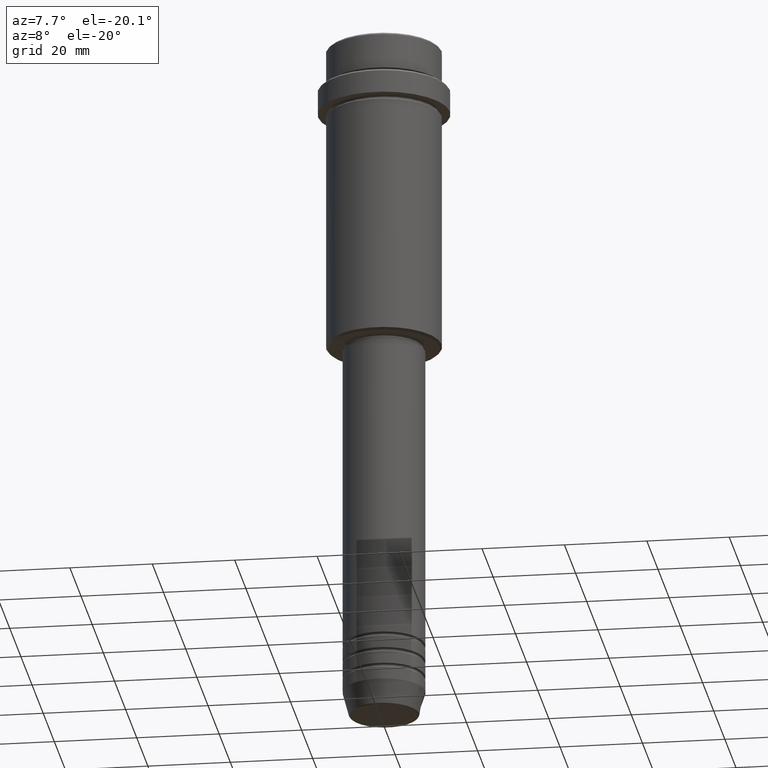
[diagram: clean part render]
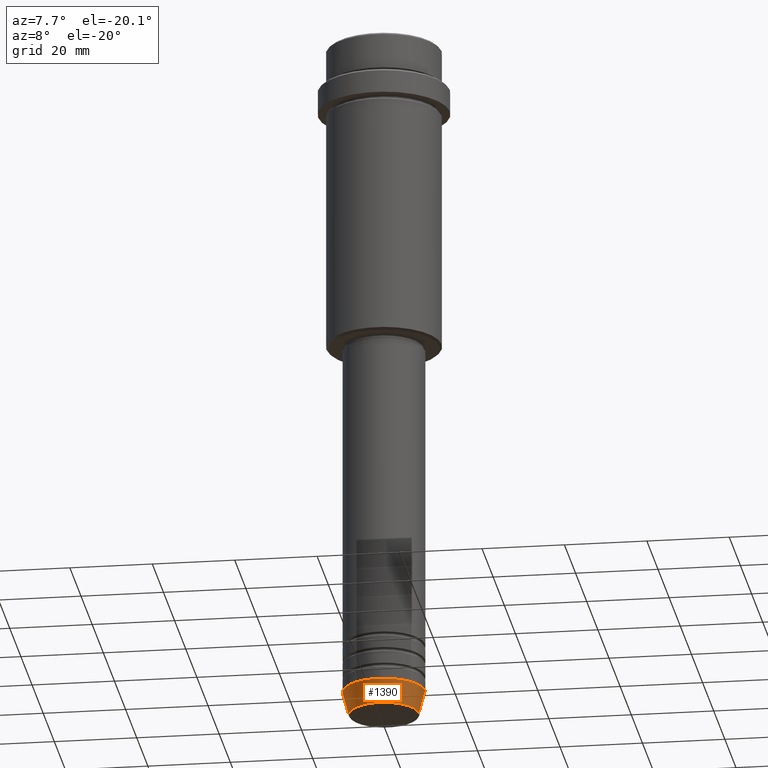
[diagram: same view with one face highlighted and labeled with its STEP entity id]
A machine part, auxiliary view. The second image highlights one B-rep face of the part: STEP entity #1390.
In plain terms, the highlighted conical surface has half-angle 15 deg.
Its self-contained STEP definition (entity closure, byte-faithful):
#24 = CARTESIAN_POINT ( 'NONE',  ( 8.491604264568309191, 0.000000000000000000, -169.6294095225512990 ) ) ;
#76 = DIRECTION ( 'NONE',  ( -0.000000000000000000, -0.000000000000000000, 1.000000000000000000 ) ) ;
#161 = ORIENTED_EDGE ( 'NONE', *, *, #860, .T. ) ;
#170 = CARTESIAN_POINT ( 'NONE',  ( 0.000000000000000000, 0.000000000000000000, -164.0000000000000000 ) ) ;
#183 = VERTEX_POINT ( 'NONE', #573 ) ;
#255 = EDGE_CURVE ( 'NONE', #1111, #646, #365, .T. ) ;
#278 = ORIENTED_EDGE ( 'NONE', *, *, #255, .T. ) ;
#296 = CARTESIAN_POINT ( 'NONE',  ( 0.000000000000000000, 0.000000000000000000, -169.6294095225512990 ) ) ;
#342 = FACE_OUTER_BOUND ( 'NONE', #656, .T. ) ;
#365 = CIRCLE ( 'NONE', #587, 8.491604264568309191 ) ;
#367 = CARTESIAN_POINT ( 'NONE',  ( -8.491604264568309191, 1.132284198685156387E-15, -169.6294095225512990 ) ) ;
#370 = CARTESIAN_POINT ( 'NONE',  ( -10.00000000000000000, 1.224646799147353256E-15, -164.0000000000000000 ) ) ;
#421 = DIRECTION ( 'NONE',  ( -0.000000000000000000, -0.000000000000000000, 1.000000000000000000 ) ) ;
#455 = DIRECTION ( 'NONE',  ( -0.000000000000000000, -0.000000000000000000, 1.000000000000000000 ) ) ;
#480 = ORIENTED_EDGE ( 'NONE', *, *, #657, .F. ) ;
#573 = CARTESIAN_POINT ( 'NONE',  ( 10.00000000000000000, 0.000000000000000000, -164.0000000000000000 ) ) ;
#587 = AXIS2_PLACEMENT_3D ( 'NONE', #296, #421, #709 ) ;
#627 = VECTOR ( 'NONE', #668, 1000.000000000000114 ) ;
#646 = VERTEX_POINT ( 'NONE', #24 ) ;
#656 = EDGE_LOOP ( 'NONE', ( #480, #278, #161, #857 ) ) ;
#657 = EDGE_CURVE ( 'NONE', #1111, #725, #684, .T. ) ;
#664 = DIRECTION ( 'NONE',  ( 1.000000000000000000, 0.000000000000000000, 0.000000000000000000 ) ) ;
#668 = DIRECTION ( 'NONE',  ( -0.2588190451025211281, 3.169619151431769872E-17, 0.9659258262890680902 ) ) ;
#684 = LINE ( 'NONE', #370, #627 ) ;
#709 = DIRECTION ( 'NONE',  ( 1.000000000000000000, 0.000000000000000000, 0.000000000000000000 ) ) ;
#725 = VERTEX_POINT ( 'NONE', #825 ) ;
#744 = AXIS2_PLACEMENT_3D ( 'NONE', #170, #76, #1264 ) ;
#825 = CARTESIAN_POINT ( 'NONE',  ( -10.00000000000000000, 1.224646799147353256E-15, -164.0000000000000000 ) ) ;
#857 = ORIENTED_EDGE ( 'NONE', *, *, #1145, .F. ) ;
#860 = EDGE_CURVE ( 'NONE', #646, #183, #1206, .T. ) ;
#946 = CIRCLE ( 'NONE', #744, 10.00000000000000000 ) ;
#1111 = VERTEX_POINT ( 'NONE', #367 ) ;
#1145 = EDGE_CURVE ( 'NONE', #725, #183, #946, .T. ) ;
#1196 = CONICAL_SURFACE ( 'NONE', #1389, 10.00000000000000000, 0.2617993877991498519 ) ;
#1203 = CARTESIAN_POINT ( 'NONE',  ( 0.000000000000000000, 0.000000000000000000, -164.0000000000000000 ) ) ;
#1206 = LINE ( 'NONE', #1305, #1287 ) ;
#1264 = DIRECTION ( 'NONE',  ( 1.000000000000000000, 0.000000000000000000, 0.000000000000000000 ) ) ;
#1287 = VECTOR ( 'NONE', #1294, 1000.000000000000114 ) ;
#1294 = DIRECTION ( 'NONE',  ( 0.2588190451025211281, 0.000000000000000000, 0.9659258262890680902 ) ) ;
#1305 = CARTESIAN_POINT ( 'NONE',  ( 10.00000000000000000, 0.000000000000000000, -164.0000000000000000 ) ) ;
#1389 = AXIS2_PLACEMENT_3D ( 'NONE', #1203, #455, #664 ) ;
#1390 = ADVANCED_FACE ( 'NONE', ( #342 ), #1196, .T. ) ;